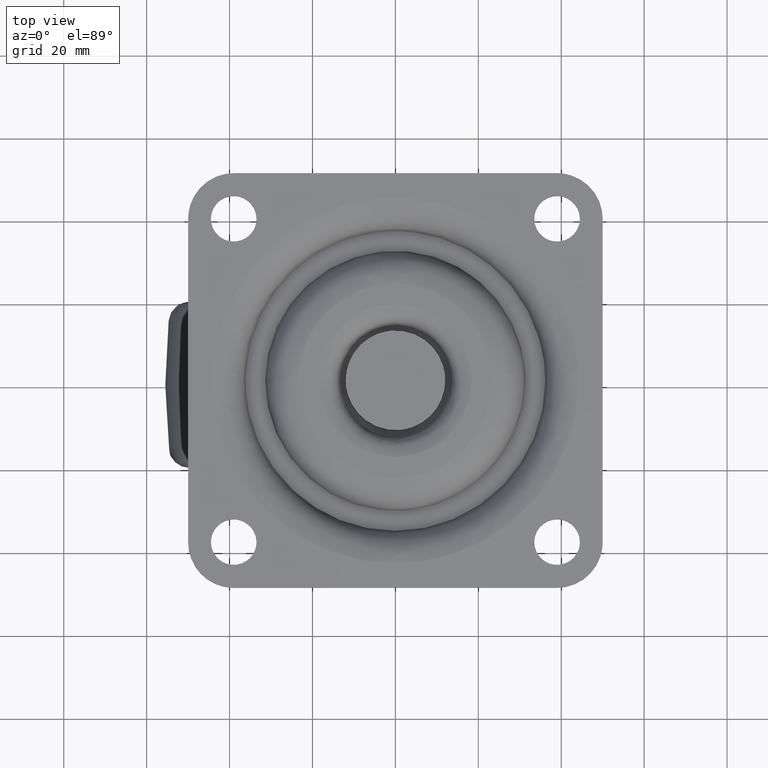
[diagram: clean part render]
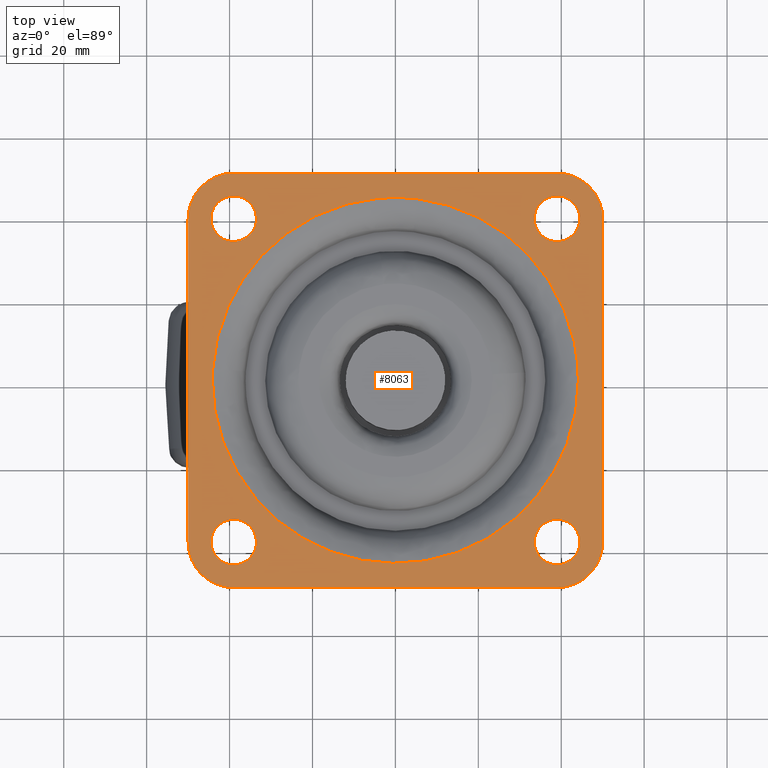
[diagram: same view with one face highlighted and labeled with its STEP entity id]
A machine part, top view. The second image highlights one B-rep face of the part: STEP entity #8063.
In plain terms, the highlighted face is a freeform B-spline surface patch.
Its self-contained STEP definition (entity closure, byte-faithful):
#6212=CARTESIAN_POINT('',(-39.649179138224753,33.538446517115410,-5.385118E-013));
#6213=VERTEX_POINT('',#6212);
#6214=CARTESIAN_POINT('',(-33.500000000000000,39.0,0.0));
#6215=VERTEX_POINT('',#6214);
#6216=CARTESIAN_POINT('',(-39.649179138224753,33.538446517115418,-5.385118E-013));
#6217=CARTESIAN_POINT('',(-39.325728033514011,33.500000000000007,0.0));
#6218=CARTESIAN_POINT('',(-39.0,33.500000000000000,0.0));
#6219=CARTESIAN_POINT('',(-33.500000000000007,33.500000000000007,0.0));
#6220=CARTESIAN_POINT('',(-33.500000000000000,39.0,0.0));
#6228=(BOUNDED_CURVE()B_SPLINE_CURVE(2,(#6216,#6217,#6218,#6219,#6220),.UNSPECIFIED.,.F.,.U.)B_SPLINE_CURVE_WITH_KNOTS((3,2,3),(0.229562756728777,0.250000000000000,0.500000000000000),.UNSPECIFIED.)CURVE()GEOMETRIC_REPRESENTATION_ITEM()RATIONAL_B_SPLINE_CURVE((0.956027309297968,0.976056280138471,1.0,0.707106781186548,1.0))REPRESENTATION_ITEM(''));
#6229=EDGE_CURVE('',#6213,#6215,#6228,.T.);
#6231=CARTESIAN_POINT('',(-38.664233032356691,44.489741391307930,-8.326673E-017));
#6232=VERTEX_POINT('',#6231);
#6233=CARTESIAN_POINT('',(-33.500000000000000,39.0,0.0));
#6234=CARTESIAN_POINT('',(-33.500000000000000,44.173883367600588,0.0));
#6235=CARTESIAN_POINT('',(-38.664233032356691,44.489741391307930,-8.326673E-017));
#6243=(BOUNDED_CURVE()B_SPLINE_CURVE(2,(#6233,#6234,#6235),.UNSPECIFIED.,.F.,.U.)B_SPLINE_CURVE_WITH_KNOTS((3,3),(0.500000000000000,0.739332962229295),.UNSPECIFIED.)CURVE()GEOMETRIC_REPRESENTATION_ITEM()RATIONAL_B_SPLINE_CURVE((1.0,0.719603993298013,0.976072041646040))REPRESENTATION_ITEM(''));
#6244=EDGE_CURVE('',#6215,#6232,#6243,.T.);
#6315=CARTESIAN_POINT('',(-44.500000000000000,39.0,0.0));
#6316=VERTEX_POINT('',#6315);
#6317=CARTESIAN_POINT('',(-44.500000000000000,39.0,0.0));
#6318=CARTESIAN_POINT('',(-44.500000000000014,34.115031863492760,0.0));
#6319=CARTESIAN_POINT('',(-39.649179138224753,33.538446517115410,-5.385118E-013));
#6327=(BOUNDED_CURVE()B_SPLINE_CURVE(2,(#6317,#6318,#6319),.UNSPECIFIED.,.F.,.U.)B_SPLINE_CURVE_WITH_KNOTS((3,3),(0.0,0.229562756728777),.UNSPECIFIED.)CURVE()GEOMETRIC_REPRESENTATION_ITEM()RATIONAL_B_SPLINE_CURVE((1.0,0.731050501048076,0.956027309297967))REPRESENTATION_ITEM(''));
#6328=EDGE_CURVE('',#6316,#6213,#6327,.T.);
#6362=CARTESIAN_POINT('',(-38.664233032356698,44.489741391307916,-8.326673E-017));
#6363=CARTESIAN_POINT('',(-38.831959801655614,44.500000000000000,0.0));
#6364=CARTESIAN_POINT('',(-39.0,44.500000000000000,0.0));
#6365=CARTESIAN_POINT('',(-44.500000000000007,44.500000000000007,0.0));
#6366=CARTESIAN_POINT('',(-44.500000000000000,39.0,0.0));
#6374=(BOUNDED_CURVE()B_SPLINE_CURVE(2,(#6362,#6363,#6364,#6365,#6366),.UNSPECIFIED.,.F.,.U.)B_SPLINE_CURVE_WITH_KNOTS((3,2,3),(0.739332962229296,0.750000000000000,1.0),.UNSPECIFIED.)CURVE()GEOMETRIC_REPRESENTATION_ITEM()RATIONAL_B_SPLINE_CURVE((0.976072041646043,0.987502787888535,1.0,0.707106781186548,1.0))REPRESENTATION_ITEM(''));
#6375=EDGE_CURVE('',#6232,#6316,#6374,.T.);
#6402=CARTESIAN_POINT('',(38.350820861775233,33.538446517115410,-5.388738E-013));
#6403=VERTEX_POINT('',#6402);
#6404=CARTESIAN_POINT('',(44.500000000000000,39.0,0.0));
#6405=VERTEX_POINT('',#6404);
#6406=CARTESIAN_POINT('',(38.350820861775240,33.538446517115410,-5.388738E-013));
#6407=CARTESIAN_POINT('',(38.674271966485982,33.499999999999993,0.0));
#6408=CARTESIAN_POINT('',(39.0,33.500000000000000,0.0));
#6409=CARTESIAN_POINT('',(44.500000000000007,33.500000000000007,0.0));
#6410=CARTESIAN_POINT('',(44.500000000000000,39.0,0.0));
#6418=(BOUNDED_CURVE()B_SPLINE_CURVE(2,(#6406,#6407,#6408,#6409,#6410),.UNSPECIFIED.,.F.,.U.)B_SPLINE_CURVE_WITH_KNOTS((3,2,3),(0.229562756728776,0.250000000000000,0.500000000000000),.UNSPECIFIED.)CURVE()GEOMETRIC_REPRESENTATION_ITEM()RATIONAL_B_SPLINE_CURVE((0.956027309297966,0.976056280138471,1.0,0.707106781186548,1.0))REPRESENTATION_ITEM(''));
#6419=EDGE_CURVE('',#6403,#6405,#6418,.T.);
#6421=CARTESIAN_POINT('',(39.335766967643309,44.489741391307938,-8.326673E-017));
#6422=VERTEX_POINT('',#6421);
#6423=CARTESIAN_POINT('',(44.500000000000000,39.0,0.0));
#6424=CARTESIAN_POINT('',(44.500000000000007,44.173883367600588,0.0));
#6425=CARTESIAN_POINT('',(39.335766967643316,44.489741391307938,-8.326673E-017));
#6433=(BOUNDED_CURVE()B_SPLINE_CURVE(2,(#6423,#6424,#6425),.UNSPECIFIED.,.F.,.U.)B_SPLINE_CURVE_WITH_KNOTS((3,3),(0.500000000000000,0.739332962229295),.UNSPECIFIED.)CURVE()GEOMETRIC_REPRESENTATION_ITEM()RATIONAL_B_SPLINE_CURVE((1.0,0.719603993298013,0.976072041646040))REPRESENTATION_ITEM(''));
#6434=EDGE_CURVE('',#6405,#6422,#6433,.T.);
#6505=CARTESIAN_POINT('',(33.500000000000000,39.0,0.0));
#6506=VERTEX_POINT('',#6505);
#6507=CARTESIAN_POINT('',(33.500000000000000,39.0,0.0));
#6508=CARTESIAN_POINT('',(33.500000000000007,34.115031863492774,0.0));
#6509=CARTESIAN_POINT('',(38.350820861775240,33.538446517115410,-5.388738E-013));
#6517=(BOUNDED_CURVE()B_SPLINE_CURVE(2,(#6507,#6508,#6509),.UNSPECIFIED.,.F.,.U.)B_SPLINE_CURVE_WITH_KNOTS((3,3),(0.0,0.229562756728776),.UNSPECIFIED.)CURVE()GEOMETRIC_REPRESENTATION_ITEM()RATIONAL_B_SPLINE_CURVE((1.0,0.731050501048077,0.956027309297966))REPRESENTATION_ITEM(''));
#6518=EDGE_CURVE('',#6506,#6403,#6517,.T.);
#6552=CARTESIAN_POINT('',(39.335766967643309,44.489741391307938,-8.326673E-017));
#6553=CARTESIAN_POINT('',(39.168040198344407,44.499999999999993,0.0));
#6554=CARTESIAN_POINT('',(39.0,44.500000000000000,0.0));
#6555=CARTESIAN_POINT('',(33.500000000000007,44.500000000000007,0.0));
#6556=CARTESIAN_POINT('',(33.500000000000000,39.0,0.0));
#6564=(BOUNDED_CURVE()B_SPLINE_CURVE(2,(#6552,#6553,#6554,#6555,#6556),.UNSPECIFIED.,.F.,.U.)B_SPLINE_CURVE_WITH_KNOTS((3,2,3),(0.739332962229296,0.750000000000000,1.0),.UNSPECIFIED.)CURVE()GEOMETRIC_REPRESENTATION_ITEM()RATIONAL_B_SPLINE_CURVE((0.976072041646042,0.987502787888535,1.0,0.707106781186548,1.0))REPRESENTATION_ITEM(''));
#6565=EDGE_CURVE('',#6422,#6506,#6564,.T.);
#6592=CARTESIAN_POINT('',(38.350820861775233,-44.461555382884633,-5.388809E-013));
#6593=VERTEX_POINT('',#6592);
#6594=CARTESIAN_POINT('',(44.500000000000000,-39.000001900000044,0.0));
#6595=VERTEX_POINT('',#6594);
#6596=CARTESIAN_POINT('',(38.350820861775233,-44.461555382884626,-5.388809E-013));
#6597=CARTESIAN_POINT('',(38.674271966485982,-44.500001900000044,0.0));
#6598=CARTESIAN_POINT('',(39.0,-44.500001900000044,0.0));
#6599=CARTESIAN_POINT('',(44.500000000000007,-44.500001900000036,0.0));
#6600=CARTESIAN_POINT('',(44.500000000000000,-39.000001900000044,0.0));
#6608=(BOUNDED_CURVE()B_SPLINE_CURVE(2,(#6596,#6597,#6598,#6599,#6600),.UNSPECIFIED.,.F.,.U.)B_SPLINE_CURVE_WITH_KNOTS((3,2,3),(0.229562756728776,0.250000000000000,0.500000000000000),.UNSPECIFIED.)CURVE()GEOMETRIC_REPRESENTATION_ITEM()RATIONAL_B_SPLINE_CURVE((0.956027309297966,0.976056280138471,1.0,0.707106781186548,1.0))REPRESENTATION_ITEM(''));
#6609=EDGE_CURVE('',#6593,#6595,#6608,.T.);
#6611=CARTESIAN_POINT('',(39.335766967643309,-33.510260508692113,-8.326673E-017));
#6612=VERTEX_POINT('',#6611);
#6613=CARTESIAN_POINT('',(44.500000000000000,-39.000001900000044,0.0));
#6614=CARTESIAN_POINT('',(44.500000000000007,-33.826118532399448,0.0));
#6615=CARTESIAN_POINT('',(39.335766967643316,-33.510260508692113,-8.326673E-017));
#6623=(BOUNDED_CURVE()B_SPLINE_CURVE(2,(#6613,#6614,#6615),.UNSPECIFIED.,.F.,.U.)B_SPLINE_CURVE_WITH_KNOTS((3,3),(0.500000000000000,0.739332962229295),.UNSPECIFIED.)CURVE()GEOMETRIC_REPRESENTATION_ITEM()RATIONAL_B_SPLINE_CURVE((1.0,0.719603993298013,0.976072041646040))REPRESENTATION_ITEM(''));
#6624=EDGE_CURVE('',#6595,#6612,#6623,.T.);
#6695=CARTESIAN_POINT('',(33.500000000000000,-39.000001900000044,0.0));
#6696=VERTEX_POINT('',#6695);
#6697=CARTESIAN_POINT('',(33.500000000000000,-39.000001900000044,0.0));
#6698=CARTESIAN_POINT('',(33.500000000000007,-43.884970036507276,0.0));
#6699=CARTESIAN_POINT('',(38.350820861775240,-44.461555382884633,-5.388809E-013));
#6707=(BOUNDED_CURVE()B_SPLINE_CURVE(2,(#6697,#6698,#6699),.UNSPECIFIED.,.F.,.U.)B_SPLINE_CURVE_WITH_KNOTS((3,3),(0.0,0.229562756728776),.UNSPECIFIED.)CURVE()GEOMETRIC_REPRESENTATION_ITEM()RATIONAL_B_SPLINE_CURVE((1.0,0.731050501048077,0.956027309297966))REPRESENTATION_ITEM(''));
#6708=EDGE_CURVE('',#6696,#6593,#6707,.T.);
#6742=CARTESIAN_POINT('',(39.335766967643309,-33.510260508692113,-8.326673E-017));
#6743=CARTESIAN_POINT('',(39.168040198344407,-33.500001900000065,0.0));
#6744=CARTESIAN_POINT('',(39.0,-33.500001900000051,0.0));
#6745=CARTESIAN_POINT('',(33.500000000000007,-33.500001900000065,0.0));
#6746=CARTESIAN_POINT('',(33.500000000000000,-39.000001900000044,0.0));
#6754=(BOUNDED_CURVE()B_SPLINE_CURVE(2,(#6742,#6743,#6744,#6745,#6746),.UNSPECIFIED.,.F.,.U.)B_SPLINE_CURVE_WITH_KNOTS((3,2,3),(0.739332962229296,0.750000000000000,1.0),.UNSPECIFIED.)CURVE()GEOMETRIC_REPRESENTATION_ITEM()RATIONAL_B_SPLINE_CURVE((0.976072041646042,0.987502787888535,1.0,0.707106781186548,1.0))REPRESENTATION_ITEM(''));
#6755=EDGE_CURVE('',#6612,#6696,#6754,.T.);
#6782=CARTESIAN_POINT('',(-39.649179138224760,-44.461555382884633,-5.388738E-013));
#6783=VERTEX_POINT('',#6782);
#6784=CARTESIAN_POINT('',(-33.500000000000000,-39.000001900000044,0.0));
#6785=VERTEX_POINT('',#6784);
#6786=CARTESIAN_POINT('',(-39.649179138224760,-44.461555382884626,-5.388738E-013));
#6787=CARTESIAN_POINT('',(-39.325728033514011,-44.500001900000051,0.0));
#6788=CARTESIAN_POINT('',(-39.0,-44.500001900000044,0.0));
#6789=CARTESIAN_POINT('',(-33.500000000000007,-44.500001900000036,0.0));
#6790=CARTESIAN_POINT('',(-33.500000000000000,-39.000001900000044,0.0));
#6798=(BOUNDED_CURVE()B_SPLINE_CURVE(2,(#6786,#6787,#6788,#6789,#6790),.UNSPECIFIED.,.F.,.U.)B_SPLINE_CURVE_WITH_KNOTS((3,2,3),(0.229562756728777,0.250000000000000,0.500000000000000),.UNSPECIFIED.)CURVE()GEOMETRIC_REPRESENTATION_ITEM()RATIONAL_B_SPLINE_CURVE((0.956027309297967,0.976056280138471,1.0,0.707106781186548,1.0))REPRESENTATION_ITEM(''));
#6799=EDGE_CURVE('',#6783,#6785,#6798,.T.);
#6801=CARTESIAN_POINT('',(-38.664233032356691,-33.510260508692113,-8.326673E-017));
#6802=VERTEX_POINT('',#6801);
#6803=CARTESIAN_POINT('',(-33.500000000000000,-39.000001900000044,0.0));
#6804=CARTESIAN_POINT('',(-33.500000000000000,-33.826118532399448,0.0));
#6805=CARTESIAN_POINT('',(-38.664233032356691,-33.510260508692113,-8.326673E-017));
#6813=(BOUNDED_CURVE()B_SPLINE_CURVE(2,(#6803,#6804,#6805),.UNSPECIFIED.,.F.,.U.)B_SPLINE_CURVE_WITH_KNOTS((3,3),(0.500000000000000,0.739332962229295),.UNSPECIFIED.)CURVE()GEOMETRIC_REPRESENTATION_ITEM()RATIONAL_B_SPLINE_CURVE((1.0,0.719603993298013,0.976072041646040))REPRESENTATION_ITEM(''));
#6814=EDGE_CURVE('',#6785,#6802,#6813,.T.);
#6885=CARTESIAN_POINT('',(-44.500000000000000,-39.000001900000044,0.0));
#6886=VERTEX_POINT('',#6885);
#6887=CARTESIAN_POINT('',(-44.500000000000000,-39.000001900000044,0.0));
#6888=CARTESIAN_POINT('',(-44.500000000000000,-43.884970036507291,0.0));
#6889=CARTESIAN_POINT('',(-39.649179138224767,-44.461555382884640,-5.388738E-013));
#6897=(BOUNDED_CURVE()B_SPLINE_CURVE(2,(#6887,#6888,#6889),.UNSPECIFIED.,.F.,.U.)B_SPLINE_CURVE_WITH_KNOTS((3,3),(0.0,0.229562756728776),.UNSPECIFIED.)CURVE()GEOMETRIC_REPRESENTATION_ITEM()RATIONAL_B_SPLINE_CURVE((1.0,0.731050501048077,0.956027309297967))REPRESENTATION_ITEM(''));
#6898=EDGE_CURVE('',#6886,#6783,#6897,.T.);
#6932=CARTESIAN_POINT('',(-38.664233032356691,-33.510260508692113,-8.326673E-017));
#6933=CARTESIAN_POINT('',(-38.831959801655600,-33.500001900000065,0.0));
#6934=CARTESIAN_POINT('',(-39.0,-33.500001900000051,0.0));
#6935=CARTESIAN_POINT('',(-44.500000000000007,-33.500001900000065,0.0));
#6936=CARTESIAN_POINT('',(-44.500000000000000,-39.000001900000044,0.0));
#6944=(BOUNDED_CURVE()B_SPLINE_CURVE(2,(#6932,#6933,#6934,#6935,#6936),.UNSPECIFIED.,.F.,.U.)B_SPLINE_CURVE_WITH_KNOTS((3,2,3),(0.739332962229296,0.750000000000000,1.0),.UNSPECIFIED.)CURVE()GEOMETRIC_REPRESENTATION_ITEM()RATIONAL_B_SPLINE_CURVE((0.976072041646042,0.987502787888535,1.0,0.707106781186548,1.0))REPRESENTATION_ITEM(''));
#6945=EDGE_CURVE('',#6802,#6886,#6944,.T.);
#7202=CARTESIAN_POINT('',(-44.049803090523582,2.771378704071481,-1.252076E-015));
#7203=VERTEX_POINT('',#7202);
#7217=CARTESIAN_POINT('',(-44.136897175059403,0.0,0.0));
#7218=VERTEX_POINT('',#7217);
#7219=CARTESIAN_POINT('',(-44.136897175059403,0.0,0.0));
#7220=CARTESIAN_POINT('',(-44.136897175059403,1.387057872993806,0.0));
#7221=CARTESIAN_POINT('',(-44.049803090523575,2.771378704071481,-1.252076E-015));
#7229=(BOUNDED_CURVE()B_SPLINE_CURVE(2,(#7219,#7220,#7221),.UNSPECIFIED.,.F.,.U.)B_SPLINE_CURVE_WITH_KNOTS((3,3),(0.0,0.010968089259965),.UNSPECIFIED.)CURVE()GEOMETRIC_REPRESENTATION_ITEM()RATIONAL_B_SPLINE_CURVE((1.0,0.987150084129662,0.975427680453316))REPRESENTATION_ITEM(''));
#7230=EDGE_CURVE('',#7218,#7203,#7229,.T.);
#7232=CARTESIAN_POINT('',(44.136897175059403,0.0,0.0));
#7233=VERTEX_POINT('',#7232);
#7234=CARTESIAN_POINT('',(44.136897175059403,0.0,0.0));
#7235=CARTESIAN_POINT('',(44.136897175059403,-44.136897175059403,0.0));
#7236=CARTESIAN_POINT('',(0.0,-44.136897175059403,0.0));
#7237=CARTESIAN_POINT('',(-44.136897175059403,-44.136897175059403,0.0));
#7238=CARTESIAN_POINT('',(-44.136897175059403,0.0,0.0));
#7246=(BOUNDED_CURVE()B_SPLINE_CURVE(2,(#7234,#7235,#7236,#7237,#7238),.UNSPECIFIED.,.F.,.U.)B_SPLINE_CURVE_WITH_KNOTS((3,2,3),(0.500000000000000,0.750000000000000,1.0),.UNSPECIFIED.)CURVE()GEOMETRIC_REPRESENTATION_ITEM()RATIONAL_B_SPLINE_CURVE((1.0,0.707106781186548,1.0,0.707106781186548,1.0))REPRESENTATION_ITEM(''));
#7247=EDGE_CURVE('',#7233,#7218,#7246,.T.);
#7249=CARTESIAN_POINT('',(5.286151822323910,43.819200027496862,-1.280889E-015));
#7250=VERTEX_POINT('',#7249);
#7251=CARTESIAN_POINT('',(5.286151822323910,43.819200027496869,-1.280889E-015));
#7252=CARTESIAN_POINT('',(44.136897175059417,39.132420301402711,0.0));
#7253=CARTESIAN_POINT('',(44.136897175059403,0.0,0.0));
#7261=(BOUNDED_CURVE()B_SPLINE_CURVE(2,(#7251,#7252,#7253),.UNSPECIFIED.,.F.,.U.)B_SPLINE_CURVE_WITH_KNOTS((3,3),(0.270732403715514,0.500000000000000),.UNSPECIFIED.)CURVE()GEOMETRIC_REPRESENTATION_ITEM()RATIONAL_B_SPLINE_CURVE((0.955449597717592,0.731396303018455,1.0))REPRESENTATION_ITEM(''));
#7262=EDGE_CURVE('',#7250,#7233,#7261,.T.);
#7319=CARTESIAN_POINT('',(-44.049803090523575,2.771378704071481,-1.252076E-015));
#7320=CARTESIAN_POINT('',(-41.447305260140652,44.136897175059396,0.0));
#7321=CARTESIAN_POINT('',(0.0,44.136897175059403,0.0));
#7322=CARTESIAN_POINT('',(2.652622693226526,44.136897175059410,0.0));
#7323=CARTESIAN_POINT('',(5.286151822323910,43.819200027496869,-1.280889E-015));
#7331=(BOUNDED_CURVE()B_SPLINE_CURVE(2,(#7319,#7320,#7321,#7322,#7323),.UNSPECIFIED.,.F.,.U.)B_SPLINE_CURVE_WITH_KNOTS((3,2,3),(0.010968089259965,0.250000000000000,0.270732403715514),.UNSPECIFIED.)CURVE()GEOMETRIC_REPRESENTATION_ITEM()RATIONAL_B_SPLINE_CURVE((0.975427680453316,0.719956697056885,1.0,0.975710478168092,0.955449597717592))REPRESENTATION_ITEM(''));
#7332=EDGE_CURVE('',#7203,#7250,#7331,.T.);
#7936=CARTESIAN_POINT('',(-54.994999917402353,54.994999543815346,0.0));
#7937=CARTESIAN_POINT('',(54.995002493680857,54.994999543815346,0.0));
#7938=CARTESIAN_POINT('',(-54.994999917402353,-54.994996973466897,0.0));
#7939=CARTESIAN_POINT('',(54.995002493680857,-54.994996973466897,0.0));
#7940=B_SPLINE_SURFACE_WITH_KNOTS('',1,1,((#7936,#7938),(#7937,#7939)),.UNSPECIFIED.,.F.,.F.,.U.,(2,2),(2,2),(0.0,109.990002411083200),(0.0,109.989996517282290),.UNSPECIFIED.);
#7941=CARTESIAN_POINT('',(50.0,39.0,0.0));
#7942=VERTEX_POINT('',#7941);
#7943=CARTESIAN_POINT('',(39.0,50.0,0.0));
#7944=VERTEX_POINT('',#7943);
#7945=CARTESIAN_POINT('',(50.0,39.0,0.0));
#7946=CARTESIAN_POINT('',(50.0,50.0,0.0));
#7947=CARTESIAN_POINT('',(39.0,50.0,0.0));
#7955=(BOUNDED_CURVE()B_SPLINE_CURVE(2,(#7945,#7946,#7947),.UNSPECIFIED.,.F.,.U.)CURVE()GEOMETRIC_REPRESENTATION_ITEM()QUASI_UNIFORM_CURVE()RATIONAL_B_SPLINE_CURVE((1.0,0.707106781186548,1.0))REPRESENTATION_ITEM(''));
#7956=EDGE_CURVE('',#7942,#7944,#7955,.T.);
#7957=ORIENTED_EDGE('',*,*,#7956,.T.);
#7958=CARTESIAN_POINT('',(-39.0,50.0,0.0));
#7959=VERTEX_POINT('',#7958);
#7960=CARTESIAN_POINT('',(39.0,50.0,0.0));
#7961=CARTESIAN_POINT('',(-39.0,50.0,0.0));
#7962=QUASI_UNIFORM_CURVE('',1,(#7960,#7961),.UNSPECIFIED.,.F.,.U.);
#7963=EDGE_CURVE('',#7944,#7959,#7962,.T.);
#7964=ORIENTED_EDGE('',*,*,#7963,.T.);
#7965=CARTESIAN_POINT('',(-50.0,39.0,0.0));
#7966=VERTEX_POINT('',#7965);
#7967=CARTESIAN_POINT('',(-39.0,50.0,0.0));
#7968=CARTESIAN_POINT('',(-50.0,50.0,0.0));
#7969=CARTESIAN_POINT('',(-50.0,39.0,0.0));
#7977=(BOUNDED_CURVE()B_SPLINE_CURVE(2,(#7967,#7968,#7969),.UNSPECIFIED.,.F.,.U.)CURVE()GEOMETRIC_REPRESENTATION_ITEM()QUASI_UNIFORM_CURVE()RATIONAL_B_SPLINE_CURVE((1.0,0.707106781186548,1.0))REPRESENTATION_ITEM(''));
#7978=EDGE_CURVE('',#7959,#7966,#7977,.T.);
#7979=ORIENTED_EDGE('',*,*,#7978,.T.);
#7980=CARTESIAN_POINT('',(-50.000001000000204,-39.000001900000044,0.0));
#7981=VERTEX_POINT('',#7980);
#7982=CARTESIAN_POINT('',(-50.0,39.0,0.0));
#7983=CARTESIAN_POINT('',(-50.000001000000204,-39.000001900000044,0.0));
#7984=QUASI_UNIFORM_CURVE('',1,(#7982,#7983),.UNSPECIFIED.,.F.,.U.);
#7985=EDGE_CURVE('',#7966,#7981,#7984,.T.);
#7986=ORIENTED_EDGE('',*,*,#7985,.T.);
#7987=CARTESIAN_POINT('',(-38.999998080138049,-50.000001899999887,0.0));
#7988=VERTEX_POINT('',#7987);
#7989=CARTESIAN_POINT('',(-50.000001000000204,-39.000001900000044,0.0));
#7990=CARTESIAN_POINT('',(-50.000000792893388,-43.556351648418641,0.0));
#7991=CARTESIAN_POINT('',(-46.778174414278404,-46.778177171825753,0.0));
#7992=CARTESIAN_POINT('',(-43.556348035663397,-50.000002695232823,0.0));
#7993=CARTESIAN_POINT('',(-38.999998080138049,-50.000001899999887,0.0));
#8001=(BOUNDED_CURVE()B_SPLINE_CURVE(2,(#7989,#7990,#7991,#7992,#7993),.UNSPECIFIED.,.F.,.U.)B_SPLINE_CURVE_WITH_KNOTS((3,2,3),(0.0,0.500000000000000,1.0),.UNSPECIFIED.)CURVE()GEOMETRIC_REPRESENTATION_ITEM()RATIONAL_B_SPLINE_CURVE((1.0,0.923879515813573,1.0,0.923879515813573,1.0))REPRESENTATION_ITEM(''));
#8002=EDGE_CURVE('',#7981,#7988,#8001,.T.);
#8003=ORIENTED_EDGE('',*,*,#8002,.T.);
#8004=CARTESIAN_POINT('',(39.0,-50.000001900000001,0.0));
#8005=VERTEX_POINT('',#8004);
#8006=CARTESIAN_POINT('',(-38.999998080138049,-50.000001899999887,0.0));
#8007=CARTESIAN_POINT('',(39.0,-50.000001900000001,0.0));
#8008=QUASI_UNIFORM_CURVE('',1,(#8006,#8007),.UNSPECIFIED.,.F.,.U.);
#8009=EDGE_CURVE('',#7988,#8005,#8008,.T.);
#8010=ORIENTED_EDGE('',*,*,#8009,.T.);
#8011=CARTESIAN_POINT('',(50.0,-39.000002475958752,0.0));
#8012=VERTEX_POINT('',#8011);
#8013=CARTESIAN_POINT('',(39.0,-50.000001900000051,0.0));
#8014=CARTESIAN_POINT('',(49.999999424041320,-50.000001900000051,0.0));
#8015=CARTESIAN_POINT('',(49.999999999999993,-39.000002475958752,0.0));
#8023=(BOUNDED_CURVE()B_SPLINE_CURVE(2,(#8013,#8014,#8015),.UNSPECIFIED.,.F.,.U.)CURVE()GEOMETRIC_REPRESENTATION_ITEM()QUASI_UNIFORM_CURVE()RATIONAL_B_SPLINE_CURVE((1.0,0.707106799698561,1.0))REPRESENTATION_ITEM(''));
#8024=EDGE_CURVE('',#8005,#8012,#8023,.T.);
#8025=ORIENTED_EDGE('',*,*,#8024,.T.);
#8026=CARTESIAN_POINT('',(50.0,-39.000002475958752,0.0));
#8027=CARTESIAN_POINT('',(50.0,39.0,0.0));
#8028=QUASI_UNIFORM_CURVE('',1,(#8026,#8027),.UNSPECIFIED.,.F.,.U.);
#8029=EDGE_CURVE('',#8012,#7942,#8028,.T.);
#8030=ORIENTED_EDGE('',*,*,#8029,.T.);
#8031=EDGE_LOOP('',(#7957,#7964,#7979,#7986,#8003,#8010,#8025,#8030));
#8032=FACE_OUTER_BOUND('',#8031,.T.);
#8033=ORIENTED_EDGE('',*,*,#7247,.T.);
#8034=ORIENTED_EDGE('',*,*,#7230,.T.);
#8035=ORIENTED_EDGE('',*,*,#7332,.T.);
#8036=ORIENTED_EDGE('',*,*,#7262,.T.);
#8037=EDGE_LOOP('',(#8033,#8034,#8035,#8036));
#8038=FACE_BOUND('',#8037,.T.);
#8039=ORIENTED_EDGE('',*,*,#6814,.F.);
#8040=ORIENTED_EDGE('',*,*,#6799,.F.);
#8041=ORIENTED_EDGE('',*,*,#6898,.F.);
#8042=ORIENTED_EDGE('',*,*,#6945,.F.);
#8043=EDGE_LOOP('',(#8039,#8040,#8041,#8042));
#8044=FACE_BOUND('',#8043,.T.);
#8045=ORIENTED_EDGE('',*,*,#6624,.F.);
#8046=ORIENTED_EDGE('',*,*,#6609,.F.);
#8047=ORIENTED_EDGE('',*,*,#6708,.F.);
#8048=ORIENTED_EDGE('',*,*,#6755,.F.);
#8049=EDGE_LOOP('',(#8045,#8046,#8047,#8048));
#8050=FACE_BOUND('',#8049,.T.);
#8051=ORIENTED_EDGE('',*,*,#6434,.F.);
#8052=ORIENTED_EDGE('',*,*,#6419,.F.);
#8053=ORIENTED_EDGE('',*,*,#6518,.F.);
#8054=ORIENTED_EDGE('',*,*,#6565,.F.);
#8055=EDGE_LOOP('',(#8051,#8052,#8053,#8054));
#8056=FACE_BOUND('',#8055,.T.);
#8057=ORIENTED_EDGE('',*,*,#6244,.F.);
#8058=ORIENTED_EDGE('',*,*,#6229,.F.);
#8059=ORIENTED_EDGE('',*,*,#6328,.F.);
#8060=ORIENTED_EDGE('',*,*,#6375,.F.);
#8061=EDGE_LOOP('',(#8057,#8058,#8059,#8060));
#8062=FACE_BOUND('',#8061,.T.);
#8063=ADVANCED_FACE('',(#8032,#8038,#8044,#8050,#8056,#8062),#7940,.F.);